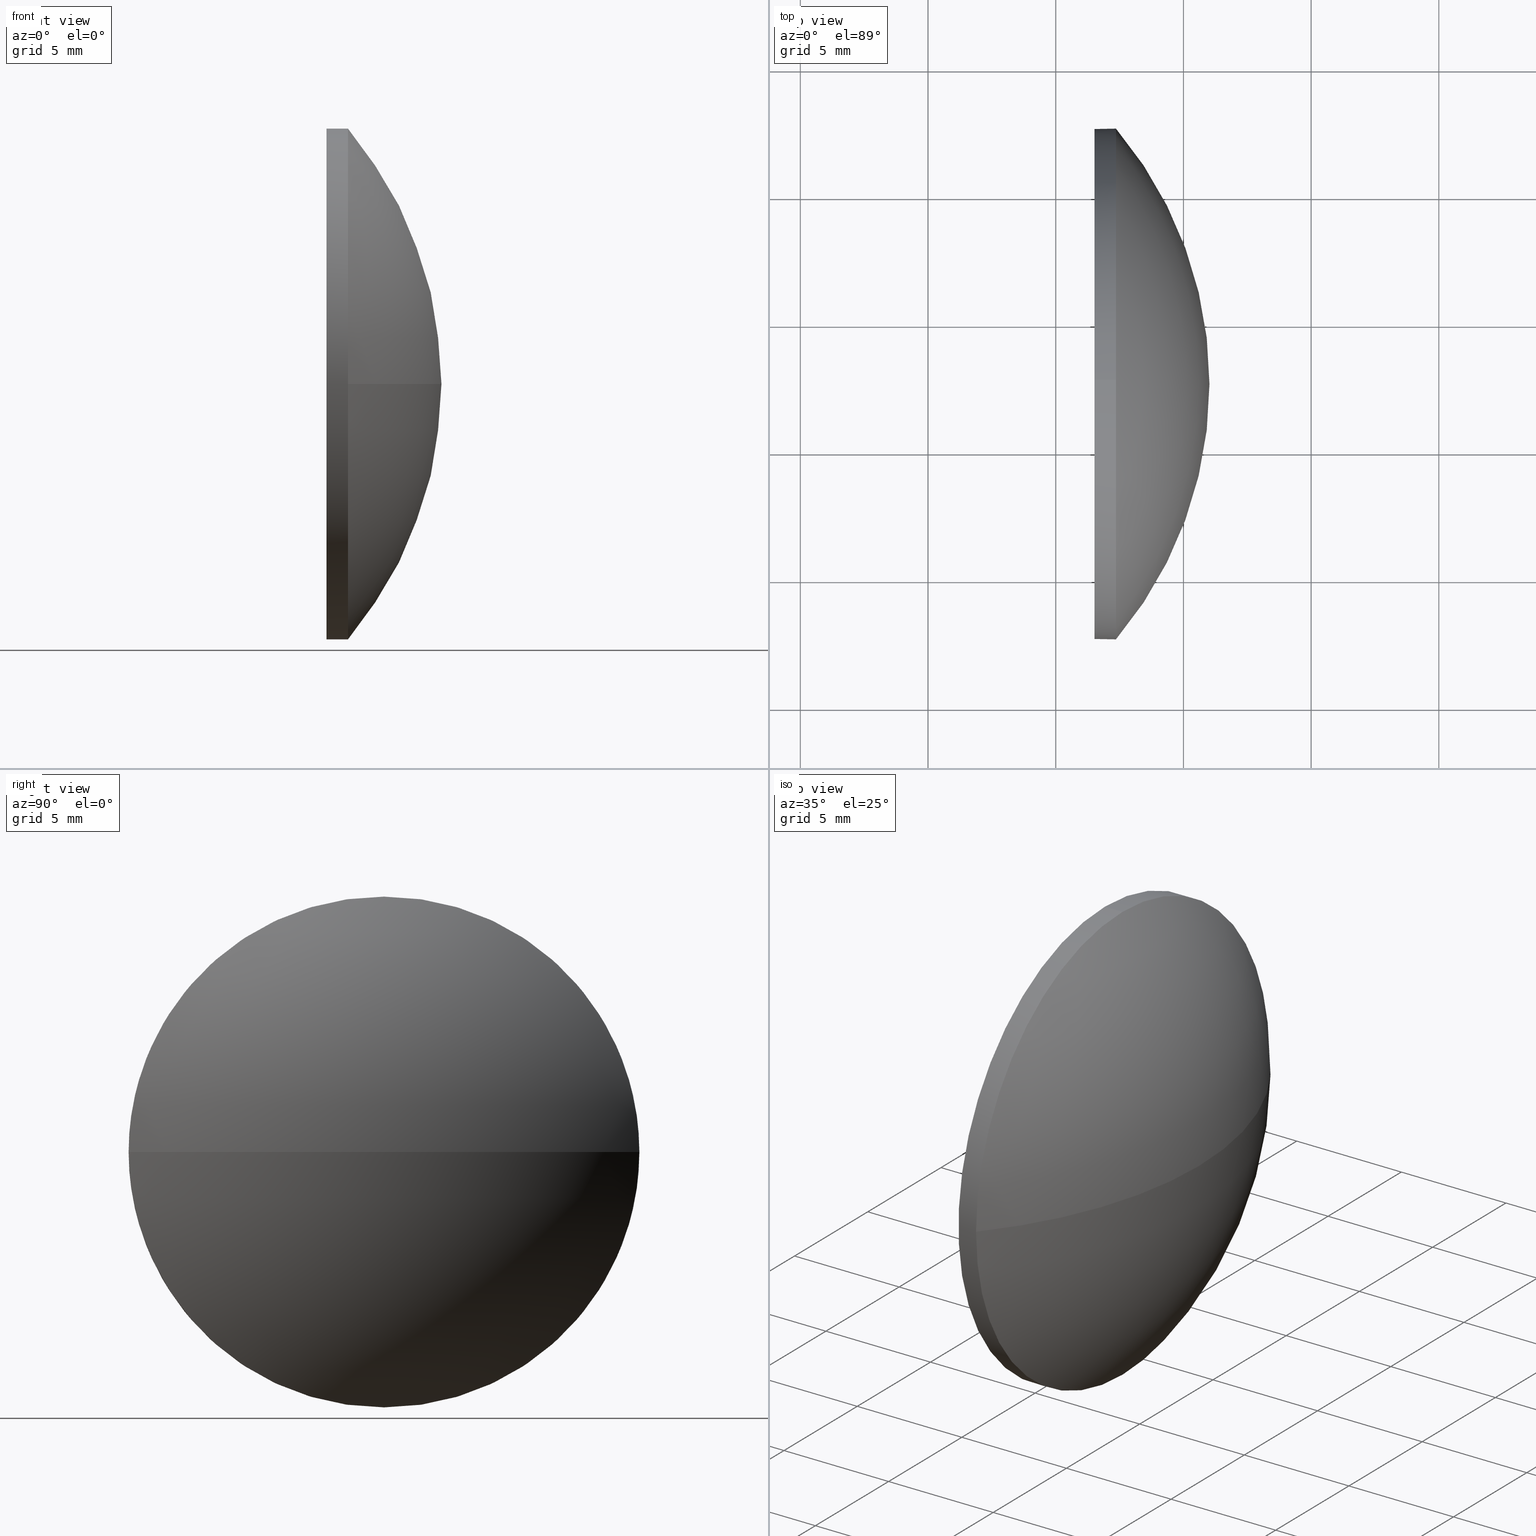
[diagram: canonical four-view strip — front | top / right | iso, engineering-drawing reading convention]
A machine part, canonical four-view strip (front | top / right | iso — engineering-drawing reading convention). The complete STEP part file that produces these views, byte-faithful:
ISO-10303-21;
HEADER;
FILE_DESCRIPTION (( 'STEP AP214' ),
    '1' );
FILE_NAME ('100206.STEP',
    '2019-05-23T06:44:44',
    ( '' ),
    ( '' ),
    'SwSTEP 2.0',
    'SolidWorks 2016',
    '' );
FILE_SCHEMA (( 'AUTOMOTIVE_DESIGN' ));
ENDSEC;

DATA;
#1 = EDGE_CURVE ( 'NONE', #55, #59, #77, .T. ) ;
#2 = DIRECTION ( 'NONE',  ( -1.000000000000000000, -0.0000000000000000000, -0.0000000000000000000 ) ) ;
#3 = COLOUR_RGB ( '',1.000000000000000000, 1.000000000000000000, 1.000000000000000000 ) ;
#4 = ADVANCED_FACE ( 'NONE', ( #6 ), #167, .T. ) ;
#5 = ORIENTED_EDGE ( 'NONE', *, *, #111, .F. ) ;
#6 = FACE_OUTER_BOUND ( 'NONE', #92, .T. ) ;
#7 = DIRECTION ( 'NONE',  ( -1.000000000000000000, -0.0000000000000000000, -0.0000000000000000000 ) ) ;
#8 = CARTESIAN_POINT ( 'NONE',  ( 442.3599078379599000, 92.59863873987114900, 1.224646799147351700E-015 ) ) ;
#9 = FILL_AREA_STYLE_COLOUR ( '', #103 ) ;
#10 = PRODUCT_DEFINITION ( 'δ֪', '', #67, #31 ) ;
#11 = LINE ( 'NONE', #47, #74 ) ;
#12 = DIRECTION ( 'NONE',  ( 0.0000000000000000000, -1.224646799147353200E-016, 1.000000000000000000 ) ) ;
#13 =( NAMED_UNIT ( * ) PLANE_ANGLE_UNIT ( ) SI_UNIT ( $, .RADIAN. ) );
#14 = AXIS2_PLACEMENT_3D ( 'NONE', #76, #141, #143 ) ;
#15 = DIRECTION ( 'NONE',  ( 0.0000000000000000000, 0.0000000000000000000, -1.000000000000000000 ) ) ;
#16 = CARTESIAN_POINT ( 'NONE',  ( 0.0000000000000000000, 0.0000000000000000000, 0.0000000000000000000 ) ) ;
#17 = FACE_OUTER_BOUND ( 'NONE', #136, .T. ) ;
#18 = EDGE_CURVE ( 'NONE', #36, #131, #116, .T. ) ;
#19 = FACE_OUTER_BOUND ( 'NONE', #100, .T. ) ;
#20 =( GEOMETRIC_REPRESENTATION_CONTEXT ( 3 ) GLOBAL_UNCERTAINTY_ASSIGNED_CONTEXT ( ( #178 ) ) GLOBAL_UNIT_ASSIGNED_CONTEXT ( ( #161, #105, #149 ) ) REPRESENTATION_CONTEXT ( 'NONE', 'WORKASPACE' ) );
#21 = ORIENTED_EDGE ( 'NONE', *, *, #30, .F. ) ;
#22 = CARTESIAN_POINT ( 'NONE',  ( 430.5287056521675600, 82.59863873987116300, 0.0000000000000000000 ) ) ;
#23 = ORIENTED_EDGE ( 'NONE', *, *, #57, .F. ) ;
#24 = VERTEX_POINT ( 'NONE', #90 ) ;
#25 = DIRECTION ( 'NONE',  ( 0.0000000000000000000, -1.000000000000000000, 0.0000000000000000000 ) ) ;
#26 = UNCERTAINTY_MEASURE_WITH_UNIT (LENGTH_MEASURE( 1.000000000000000100E-005 ), #186, 'distance_accuracy_value', 'NONE');
#27 = ORIENTED_EDGE ( 'NONE', *, *, #94, .T. ) ;
#28 = ORIENTED_EDGE ( 'NONE', *, *, #122, .T. ) ;
#29 = DIRECTION ( 'NONE',  ( 0.0000000000000000000, -1.000000000000000000, -1.224646799147352700E-016 ) ) ;
#30 = EDGE_CURVE ( 'NONE', #59, #36, #83, .T. ) ;
#31 = PRODUCT_DEFINITION_CONTEXT ( 'detailed design', #86, 'design' ) ;
#32 = DIRECTION ( 'NONE',  ( 0.0000000000000000000, 0.0000000000000000000, 1.000000000000000000 ) ) ;
#33 = AXIS2_PLACEMENT_3D ( 'NONE', #16, #101, #154 ) ;
#34 = CARTESIAN_POINT ( 'NONE',  ( 441.5199078379598600, 82.59863873987114900, 9.999999999999994700 ) ) ;
#35 = SURFACE_STYLE_USAGE ( .BOTH. , #184 ) ;
#36 = VERTEX_POINT ( 'NONE', #40 ) ;
#37 = CARTESIAN_POINT ( 'NONE',  ( 439.8966217752103500, 82.59863873987114900, 0.0000000000000000000 ) ) ;
#38 = EDGE_CURVE ( 'NONE', #87, #24, #163, .T. ) ;
#39 = DIRECTION ( 'NONE',  ( 0.0000000000000000000, 0.0000000000000000000, -1.000000000000000000 ) ) ;
#40 = CARTESIAN_POINT ( 'NONE',  ( 442.3599078379599000, 82.59863873987114900, 9.999999999999994700 ) ) ;
#41 = CARTESIAN_POINT ( 'NONE',  ( 446.0199078379599200, 82.59863873987116300, 0.0000000000000000000 ) ) ;
#42 = ADVANCED_BREP_SHAPE_REPRESENTATION ( '100206', ( #145, #33 ), #73 ) ;
#43 = CARTESIAN_POINT ( 'NONE',  ( 430.5287056521675600, 82.59863873987116300, 0.0000000000000000000 ) ) ;
#44 = CARTESIAN_POINT ( 'NONE',  ( 442.3599078379599000, 82.59863873987114900, 0.0000000000000000000 ) ) ;
#45 = SPHERICAL_SURFACE ( 'NONE', #72, 15.49120218579235700 ) ;
#46 = APPLICATION_PROTOCOL_DEFINITION ( 'draft international standard', 'automotive_design', 1998, #115 ) ;
#47 = CARTESIAN_POINT ( 'NONE',  ( 439.8966217752103500, 82.59863873987114900, -9.999999999999994700 ) ) ;
#48 = CIRCLE ( 'NONE', #142, 9.999999999999994700 ) ;
#49 = FACE_OUTER_BOUND ( 'NONE', #147, .T. ) ;
#50 = ORIENTED_EDGE ( 'NONE', *, *, #52, .F. ) ;
#51 = ADVANCED_FACE ( 'NONE', ( #91 ), #54, .T. ) ;
#52 = EDGE_CURVE ( 'NONE', #179, #131, #159, .T. ) ;
#53 = DIRECTION ( 'NONE',  ( 0.0000000000000000000, 0.0000000000000000000, 1.000000000000000000 ) ) ;
#54 = SPHERICAL_SURFACE ( 'NONE', #89, 15.49120218579235700 ) ;
#55 = VERTEX_POINT ( 'NONE', #41 ) ;
#56 = DIRECTION ( 'NONE',  ( 0.0000000000000000000, 0.0000000000000000000, 1.000000000000000000 ) ) ;
#57 = EDGE_CURVE ( 'NONE', #36, #87, #117, .T. ) ;
#58 = DIRECTION ( 'NONE',  ( 0.0000000000000000000, 0.0000000000000000000, 1.000000000000000000 ) ) ;
#59 = VERTEX_POINT ( 'NONE', #182 ) ;
#60 = CARTESIAN_POINT ( 'NONE',  ( 442.3599078379599000, 82.59863873987114900, 0.0000000000000000000 ) ) ;
#61 = DIRECTION ( 'NONE',  ( -1.000000000000000000, -0.0000000000000000000, -0.0000000000000000000 ) ) ;
#62 = CLOSED_SHELL ( 'NONE', ( #4, #51, #181, #164, #140 ) ) ;
#63 = AXIS2_PLACEMENT_3D ( 'NONE', #185, #152, #15 ) ;
#64 = ORIENTED_EDGE ( 'NONE', *, *, #122, .F. ) ;
#65 = DIRECTION ( 'NONE',  ( 0.0000000000000000000, 0.0000000000000000000, 1.000000000000000000 ) ) ;
#66 = ORIENTED_EDGE ( 'NONE', *, *, #151, .F. ) ;
#67 = PRODUCT_DEFINITION_FORMATION_WITH_SPECIFIED_SOURCE ( '�κ�', '', #96, .NOT_KNOWN. ) ;
#68 = CARTESIAN_POINT ( 'NONE',  ( 442.3599078379599000, 82.59863873987114900, 0.0000000000000000000 ) ) ;
#69 = EDGE_LOOP ( 'NONE', ( #176, #172, #23, #21 ) ) ;
#70 = DIRECTION ( 'NONE',  ( 0.0000000000000000000, 0.0000000000000000000, 1.000000000000000000 ) ) ;
#71 = APPLICATION_PROTOCOL_DEFINITION ( 'draft international standard', 'automotive_design', 1998, #86 ) ;
#72 = AXIS2_PLACEMENT_3D ( 'NONE', #129, #53, #84 ) ;
#73 =( GEOMETRIC_REPRESENTATION_CONTEXT ( 3 ) GLOBAL_UNCERTAINTY_ASSIGNED_CONTEXT ( ( #26 ) ) GLOBAL_UNIT_ASSIGNED_CONTEXT ( ( #186, #168, #104 ) ) REPRESENTATION_CONTEXT ( 'NONE', 'WORKASPACE' ) );
#74 = VECTOR ( 'NONE', #160, 1000.000000000000000 ) ;
#75 = AXIS2_PLACEMENT_3D ( 'NONE', #97, #7, #146 ) ;
#76 = CARTESIAN_POINT ( 'NONE',  ( 442.3599078379599000, 82.59863873987114900, 0.0000000000000000000 ) ) ;
#77 = CIRCLE ( 'NONE', #81, 15.49120218579236400 ) ;
#78 =( LENGTH_UNIT ( ) NAMED_UNIT ( * ) SI_UNIT ( .MILLI., .METRE. ) );
#79 = PRESENTATION_STYLE_ASSIGNMENT (( #113 ) ) ;
#80 = FILL_AREA_STYLE ('',( #9 ) ) ;
#81 = AXIS2_PLACEMENT_3D ( 'NONE', #22, #39, #165 ) ;
#82 = CARTESIAN_POINT ( 'NONE',  ( 439.8966217752103500, 82.59863873987114900, 0.0000000000000000000 ) ) ;
#83 = CIRCLE ( 'NONE', #173, 9.999999999999994700 ) ;
#84 = DIRECTION ( 'NONE',  ( 0.0000000000000000000, -1.000000000000000000, 0.0000000000000000000 ) ) ;
#85 = DIRECTION ( 'NONE',  ( -1.000000000000000000, -0.0000000000000000000, -0.0000000000000000000 ) ) ;
#86 = APPLICATION_CONTEXT ( 'automotive_design' ) ;
#87 = VERTEX_POINT ( 'NONE', #8 ) ;
#88 = ORIENTED_EDGE ( 'NONE', *, *, #52, .T. ) ;
#89 = AXIS2_PLACEMENT_3D ( 'NONE', #144, #98, #25 ) ;
#90 = CARTESIAN_POINT ( 'NONE',  ( 442.3599078379599000, 82.59863873987114900, -9.999999999999994700 ) ) ;
#91 = FACE_OUTER_BOUND ( 'NONE', #69, .T. ) ;
#92 = EDGE_LOOP ( 'NONE', ( #177, #28, #66, #127, #170 ) ) ;
#93 = CIRCLE ( 'NONE', #107, 9.999999999999994700 ) ;
#94 = EDGE_CURVE ( 'NONE', #24, #59, #48, .T. ) ;
#95 = ORIENTED_EDGE ( 'NONE', *, *, #151, .T. ) ;
#96 = PRODUCT ( '100206', '100206', '', ( #175 ) ) ;
#97 = CARTESIAN_POINT ( 'NONE',  ( 441.5199078379598600, 82.59863873987114900, 0.0000000000000000000 ) ) ;
#98 = DIRECTION ( 'NONE',  ( 0.0000000000000000000, 0.0000000000000000000, 1.000000000000000000 ) ) ;
#99 = ORIENTED_EDGE ( 'NONE', *, *, #30, .T. ) ;
#100 = EDGE_LOOP ( 'NONE', ( #5, #135, #139, #169 ) ) ;
#101 = DIRECTION ( 'NONE',  ( 0.0000000000000000000, 0.0000000000000000000, 1.000000000000000000 ) ) ;
#102 = MECHANICAL_DESIGN_GEOMETRIC_PRESENTATION_REPRESENTATION (  '', ( #180 ), #109 ) ;
#103 = COLOUR_RGB ( '',1.000000000000000000, 1.000000000000000000, 1.000000000000000000 ) ;
#104 =( NAMED_UNIT ( * ) SI_UNIT ( $, .STERADIAN. ) SOLID_ANGLE_UNIT ( ) );
#105 =( NAMED_UNIT ( * ) PLANE_ANGLE_UNIT ( ) SI_UNIT ( $, .RADIAN. ) );
#106 = AXIS2_PLACEMENT_3D ( 'NONE', #37, #2, #65 ) ;
#107 = AXIS2_PLACEMENT_3D ( 'NONE', #174, #85, #32 ) ;
#108 = CARTESIAN_POINT ( 'NONE',  ( 439.8966217752103500, 82.59863873987114900, 9.999999999999994700 ) ) ;
#109 =( GEOMETRIC_REPRESENTATION_CONTEXT ( 3 ) GLOBAL_UNCERTAINTY_ASSIGNED_CONTEXT ( ( #157 ) ) GLOBAL_UNIT_ASSIGNED_CONTEXT ( ( #78, #13, #183 ) ) REPRESENTATION_CONTEXT ( 'NONE', 'WORKASPACE' ) );
#110 = PRESENTATION_STYLE_ASSIGNMENT (( #35 ) ) ;
#111 = EDGE_CURVE ( 'NONE', #55, #87, #125, .T. ) ;
#112 = DIRECTION ( 'NONE',  ( 0.0000000000000000000, 0.0000000000000000000, 1.000000000000000000 ) ) ;
#113 = SURFACE_STYLE_USAGE ( .BOTH. , #150 ) ;
#114 = DIRECTION ( 'NONE',  ( -1.000000000000000000, -0.0000000000000000000, -0.0000000000000000000 ) ) ;
#115 = APPLICATION_CONTEXT ( 'automotive_design' ) ;
#116 = LINE ( 'NONE', #108, #120 ) ;
#117 = CIRCLE ( 'NONE', #118, 9.999999999999994700 ) ;
#118 = AXIS2_PLACEMENT_3D ( 'NONE', #60, #114, #56 ) ;
#119 = SHAPE_DEFINITION_REPRESENTATION ( #123, #42 ) ;
#120 = VECTOR ( 'NONE', #121, 1000.000000000000000 ) ;
#121 = DIRECTION ( 'NONE',  ( -1.000000000000000000, -0.0000000000000000000, -0.0000000000000000000 ) ) ;
#122 = EDGE_CURVE ( 'NONE', #24, #179, #11, .T. ) ;
#123 = PRODUCT_DEFINITION_SHAPE ( 'NONE', 'NONE',  #10 ) ;
#124 = PRESENTATION_LAYER_ASSIGNMENT (  '', '', ( #134 ) ) ;
#125 = CIRCLE ( 'NONE', #162, 15.49120218579236400 ) ;
#126 = FILL_AREA_STYLE ('',( #133 ) ) ;
#127 = ORIENTED_EDGE ( 'NONE', *, *, #18, .F. ) ;
#128 = CYLINDRICAL_SURFACE ( 'NONE', #138, 9.999999999999994700 ) ;
#129 = CARTESIAN_POINT ( 'NONE',  ( 430.5287056521675600, 82.59863873987116300, 0.0000000000000000000 ) ) ;
#130 = MECHANICAL_DESIGN_GEOMETRIC_PRESENTATION_REPRESENTATION (  '', ( #134 ), #20 ) ;
#131 = VERTEX_POINT ( 'NONE', #34 ) ;
#132 = CARTESIAN_POINT ( 'NONE',  ( 441.5199078379598600, 82.59863873987114900, -9.999999999999994700 ) ) ;
#133 = FILL_AREA_STYLE_COLOUR ( '', #3 ) ;
#134 = STYLED_ITEM ( 'NONE', ( #79 ), #145 ) ;
#135 = ORIENTED_EDGE ( 'NONE', *, *, #1, .T. ) ;
#136 = EDGE_LOOP ( 'NONE', ( #95, #88 ) ) ;
#137 = SURFACE_STYLE_FILL_AREA ( #80 ) ;
#138 = AXIS2_PLACEMENT_3D ( 'NONE', #82, #171, #58 ) ;
#139 = ORIENTED_EDGE ( 'NONE', *, *, #94, .F. ) ;
#140 = ADVANCED_FACE ( 'NONE', ( #17 ), #158, .F. ) ;
#141 = DIRECTION ( 'NONE',  ( -1.000000000000000000, -0.0000000000000000000, -0.0000000000000000000 ) ) ;
#142 = AXIS2_PLACEMENT_3D ( 'NONE', #44, #61, #70 ) ;
#143 = DIRECTION ( 'NONE',  ( 0.0000000000000000000, 0.0000000000000000000, 1.000000000000000000 ) ) ;
#144 = CARTESIAN_POINT ( 'NONE',  ( 430.5287056521675600, 82.59863873987116300, 0.0000000000000000000 ) ) ;
#145 = MANIFOLD_SOLID_BREP ( '��ת1', #62 ) ;
#146 = DIRECTION ( 'NONE',  ( 0.0000000000000000000, 0.0000000000000000000, 1.000000000000000000 ) ) ;
#147 = EDGE_LOOP ( 'NONE', ( #64, #27, #99, #155, #50 ) ) ;
#148 = DIRECTION ( 'NONE',  ( -1.000000000000000000, -0.0000000000000000000, -0.0000000000000000000 ) ) ;
#149 =( NAMED_UNIT ( * ) SI_UNIT ( $, .STERADIAN. ) SOLID_ANGLE_UNIT ( ) );
#150 = SURFACE_SIDE_STYLE ('',( #166 ) ) ;
#151 = EDGE_CURVE ( 'NONE', #131, #179, #93, .T. ) ;
#152 = DIRECTION ( 'NONE',  ( 1.000000000000000000, 0.0000000000000000000, 0.0000000000000000000 ) ) ;
#153 = PRODUCT_RELATED_PRODUCT_CATEGORY ( 'part', '', ( #96 ) ) ;
#154 = DIRECTION ( 'NONE',  ( 1.000000000000000000, 0.0000000000000000000, 0.0000000000000000000 ) ) ;
#155 = ORIENTED_EDGE ( 'NONE', *, *, #18, .T. ) ;
#156 = PRESENTATION_LAYER_ASSIGNMENT (  '', '', ( #180 ) ) ;
#157 = UNCERTAINTY_MEASURE_WITH_UNIT (LENGTH_MEASURE( 1.000000000000000100E-005 ), #78, 'distance_accuracy_value', 'NONE');
#158 = PLANE ( 'NONE',  #63 ) ;
#159 = CIRCLE ( 'NONE', #75, 9.999999999999994700 ) ;
#160 = DIRECTION ( 'NONE',  ( -1.000000000000000000, -0.0000000000000000000, -0.0000000000000000000 ) ) ;
#161 =( LENGTH_UNIT ( ) NAMED_UNIT ( * ) SI_UNIT ( .MILLI., .METRE. ) );
#162 = AXIS2_PLACEMENT_3D ( 'NONE', #43, #12, #29 ) ;
#163 = CIRCLE ( 'NONE', #14, 9.999999999999994700 ) ;
#164 = ADVANCED_FACE ( 'NONE', ( #49 ), #128, .T. ) ;
#165 = DIRECTION ( 'NONE',  ( -1.000000000000000000, 0.0000000000000000000, 0.0000000000000000000 ) ) ;
#166 = SURFACE_STYLE_FILL_AREA ( #126 ) ;
#167 = CYLINDRICAL_SURFACE ( 'NONE', #106, 9.999999999999994700 ) ;
#168 =( NAMED_UNIT ( * ) PLANE_ANGLE_UNIT ( ) SI_UNIT ( $, .RADIAN. ) );
#169 = ORIENTED_EDGE ( 'NONE', *, *, #38, .F. ) ;
#170 = ORIENTED_EDGE ( 'NONE', *, *, #57, .T. ) ;
#171 = DIRECTION ( 'NONE',  ( -1.000000000000000000, -0.0000000000000000000, -0.0000000000000000000 ) ) ;
#172 = ORIENTED_EDGE ( 'NONE', *, *, #111, .T. ) ;
#173 = AXIS2_PLACEMENT_3D ( 'NONE', #68, #148, #112 ) ;
#174 = CARTESIAN_POINT ( 'NONE',  ( 441.5199078379598600, 82.59863873987114900, 0.0000000000000000000 ) ) ;
#175 = PRODUCT_CONTEXT ( 'NONE', #115, 'mechanical' ) ;
#176 = ORIENTED_EDGE ( 'NONE', *, *, #1, .F. ) ;
#177 = ORIENTED_EDGE ( 'NONE', *, *, #38, .T. ) ;
#178 = UNCERTAINTY_MEASURE_WITH_UNIT (LENGTH_MEASURE( 1.000000000000000100E-005 ), #161, 'distance_accuracy_value', 'NONE');
#179 = VERTEX_POINT ( 'NONE', #132 ) ;
#180 = STYLED_ITEM ( 'NONE', ( #110 ), #42 ) ;
#181 = ADVANCED_FACE ( 'NONE', ( #19 ), #45, .T. ) ;
#182 = CARTESIAN_POINT ( 'NONE',  ( 442.3599078379599000, 72.59863873987116300, 0.0000000000000000000 ) ) ;
#183 =( NAMED_UNIT ( * ) SI_UNIT ( $, .STERADIAN. ) SOLID_ANGLE_UNIT ( ) );
#184 = SURFACE_SIDE_STYLE ('',( #137 ) ) ;
#185 = CARTESIAN_POINT ( 'NONE',  ( 441.5199078379598600, 82.59863873987114900, 0.0000000000000000000 ) ) ;
#186 =( LENGTH_UNIT ( ) NAMED_UNIT ( * ) SI_UNIT ( .MILLI., .METRE. ) );
ENDSEC;
END-ISO-10303-21;
